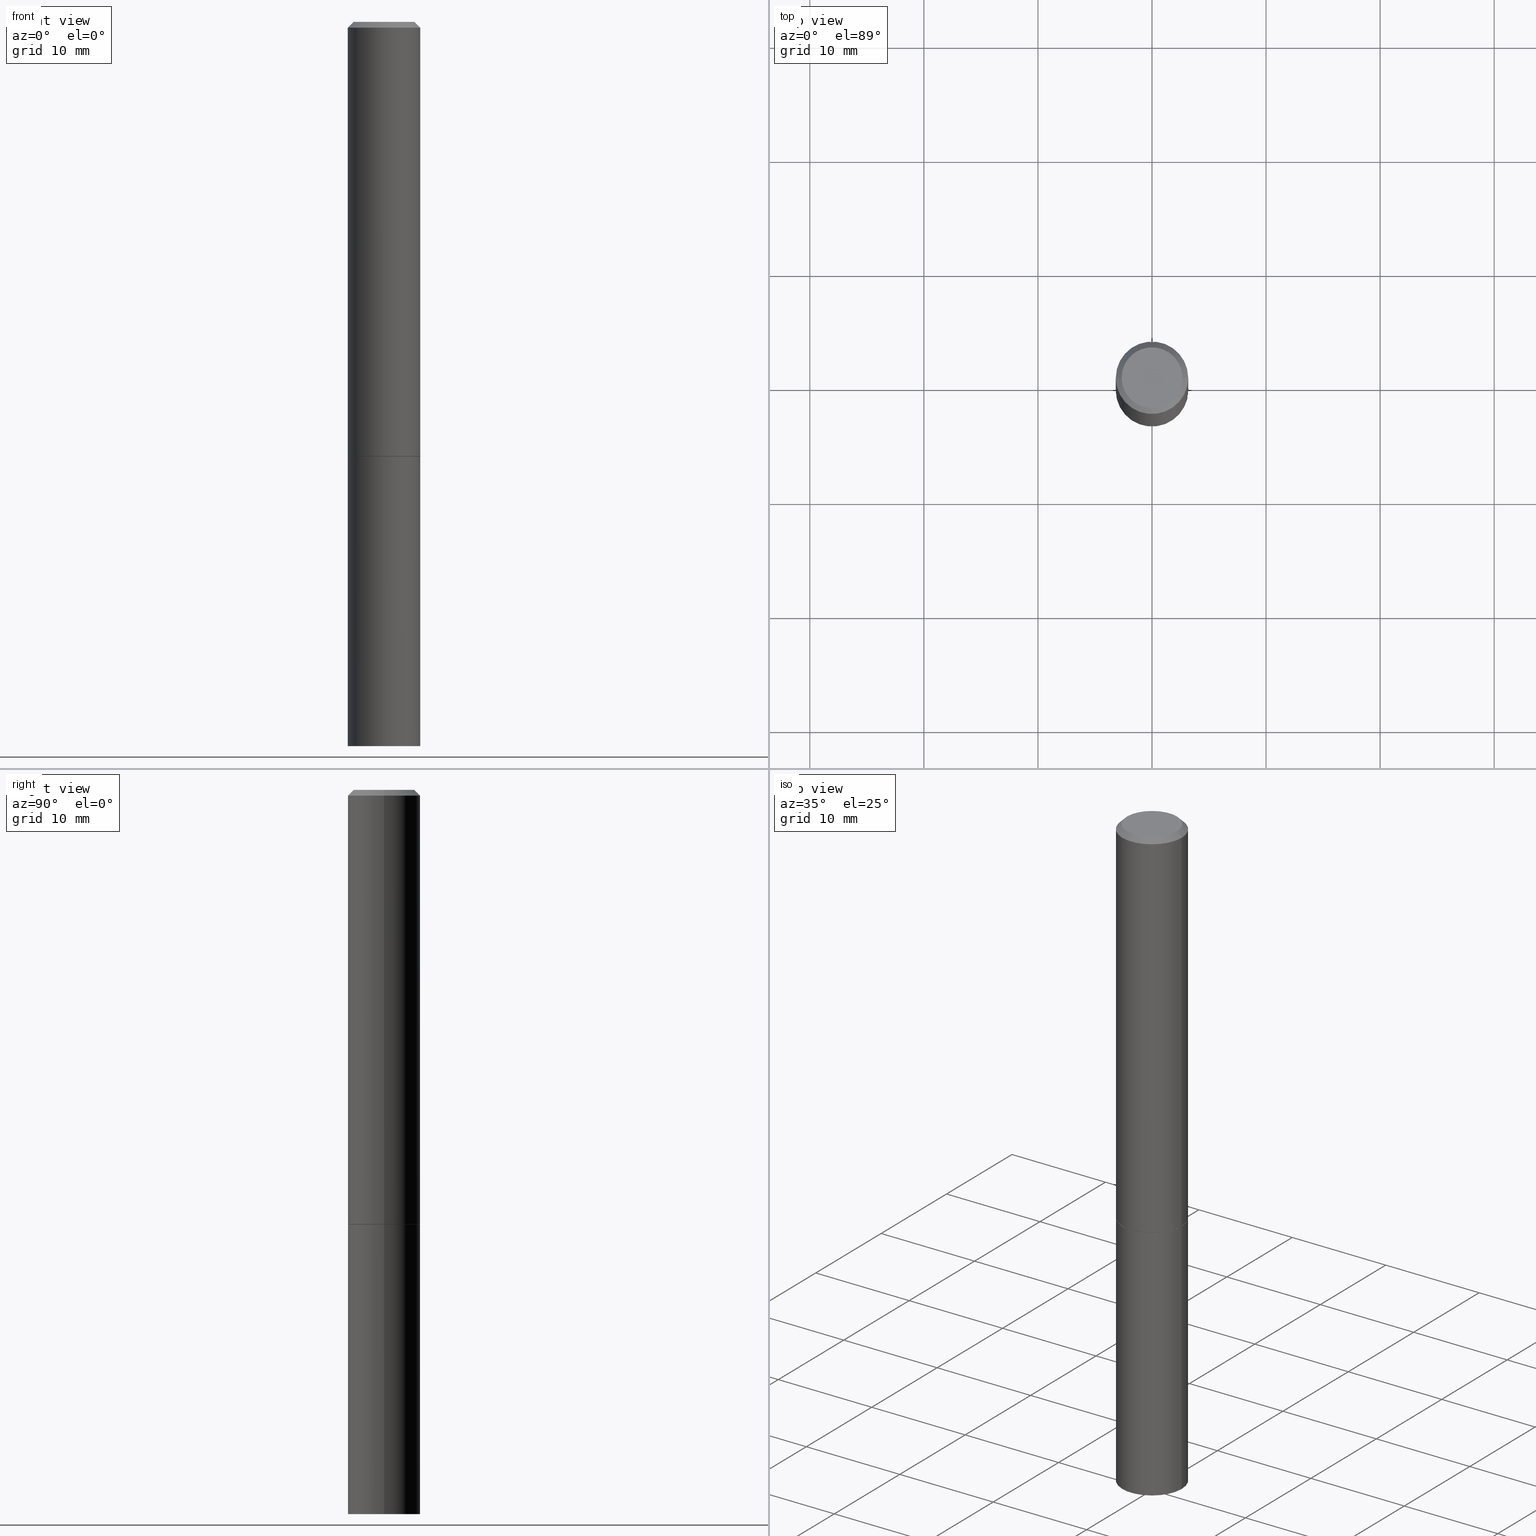
[diagram: canonical four-view strip — front | top / right | iso, engineering-drawing reading convention]
A machine part, canonical four-view strip (front | top / right | iso — engineering-drawing reading convention). The complete STEP part file that produces these views, byte-faithful:
ISO-10303-21;
HEADER;
FILE_DESCRIPTION (( 'STEP AP203' ),
    '1' );
FILE_NAME ('72971.STEP',
    '2024-02-29T05:51:46',
    ( '' ),
    ( '' ),
    'SwSTEP 2.0',
    'SolidWorks 2023',
    '' );
FILE_SCHEMA (( 'CONFIG_CONTROL_DESIGN' ));
ENDSEC;

DATA;
#1 =( NAMED_UNIT ( * ) SI_UNIT ( $, .STERADIAN. ) SOLID_ANGLE_UNIT ( ) );
#2 = VECTOR ( 'NONE', #195, 39.37007874015748854 ) ;
#3 = APPROVAL ( #232, 'UNSPECIFIED' ) ;
#4 =( LENGTH_UNIT ( ) NAMED_UNIT ( * ) SI_UNIT ( $, .METRE. ) );
#5 = LENGTH_MEASURE_WITH_UNIT ( LENGTH_MEASURE( 0.02539999999999999897 ), #4 );
#6 = ORIENTED_EDGE ( 'NONE', *, *, #209, .F. ) ;
#7 = CONICAL_SURFACE ( 'NONE', #81, 0.1239999999999999991, 0.7853981633974141952 ) ;
#8 = LOCAL_TIME ( 0, 51, 46.00000000000000000, #360 ) ;
#9 = DATE_AND_TIME ( #238, #336 ) ;
#10 = ORIENTED_EDGE ( 'NONE', *, *, #73, .T. ) ;
#11 = CC_DESIGN_PERSON_AND_ORGANIZATION_ASSIGNMENT ( #170, #313, ( #153 ) ) ;
#12 = DIRECTION ( 'NONE',  ( 1.000000000000000000, -6.982962677686270655E-15, 0.000000000000000000 ) ) ;
#13 = ORIENTED_EDGE ( 'NONE', *, *, #134, .F. ) ;
#14 = CONICAL_SURFACE ( 'NONE', #42, 0.1249999999999998057, 0.7853981633974469467 ) ;
#15 = CARTESIAN_POINT ( 'NONE',  ( 8.728703347108443769E-16, 0.1249999999999912709, -2.500000000000000444 ) ) ;
#16 = VERTEX_POINT ( 'NONE', #129 ) ;
#17 = COORDINATED_UNIVERSAL_TIME_OFFSET ( 5, 0, .BEHIND. ) ;
#18 = ORIENTED_EDGE ( 'NONE', *, *, #357, .F. ) ;
#19 = COORDINATED_UNIVERSAL_TIME_OFFSET ( 5, 0, .BEHIND. ) ;
#20 = SECURITY_CLASSIFICATION ( '', '', #250 ) ;
#21 = PLANE ( 'NONE',  #112 ) ;
#22 = COORDINATED_UNIVERSAL_TIME_OFFSET ( 5, 0, .BEHIND. ) ;
#23 = FACE_OUTER_BOUND ( 'NONE', #314, .T. ) ;
#24 = DIRECTION ( 'NONE',  ( -2.445468806185136877E-29, 3.491481338843145188E-15, 1.000000000000000000 ) ) ;
#25 = VECTOR ( 'NONE', #226, 39.37007874015748143 ) ;
#26 = DIRECTION ( 'NONE',  ( -1.000000000000000000, 6.982962677686265922E-15, -4.876176775795935793E-29 ) ) ;
#27 = FACE_OUTER_BOUND ( 'NONE', #96, .T. ) ;
#28 = CARTESIAN_POINT ( 'NONE',  ( 0.1249999999999998057, -9.273918764983031658E-16, -0.02000000000000004552 ) ) ;
#29 = ADVANCED_FACE ( 'NONE', ( #92 ), #94, .F. ) ;
#30 = AXIS2_PLACEMENT_3D ( 'NONE', #143, #202, #288 ) ;
#31 =( NAMED_UNIT ( * ) PLANE_ANGLE_UNIT ( ) SI_UNIT ( $, .RADIAN. ) );
#32 = EDGE_LOOP ( 'NONE', ( #151, #322, #18, #85 ) ) ;
#33 = ORIENTED_EDGE ( 'NONE', *, *, #158, .F. ) ;
#34 = PERSON_AND_ORGANIZATION ( #201, #225 ) ;
#35 = ADVANCED_FACE ( 'NONE', ( #298 ), #214, .T. ) ;
#36 = ORIENTED_EDGE ( 'NONE', *, *, #197, .T. ) ;
#37 = CONICAL_SURFACE ( 'NONE', #77, 0.1249999999999998057, 0.7853981633974469467 ) ;
#38 =( GEOMETRIC_REPRESENTATION_CONTEXT ( 3 ) GLOBAL_UNCERTAINTY_ASSIGNED_CONTEXT ( ( #269 ) ) GLOBAL_UNIT_ASSIGNED_CONTEXT ( ( #117, #31, #1 ) ) REPRESENTATION_CONTEXT ( 'NONE', 'WORKASPACE' ) );
#39 = DIRECTION ( 'NONE',  ( -0.7071067811865232589, 7.493145998870265808E-15, 0.7071067811865715536 ) ) ;
#40 = DIRECTION ( 'NONE',  ( -1.000000000000000000, 6.982962677686265922E-15, -4.876176775795935793E-29 ) ) ;
#41 = ORIENTED_EDGE ( 'NONE', *, *, #61, .T. ) ;
#42 = AXIS2_PLACEMENT_3D ( 'NONE', #175, #115, #235 ) ;
#43 = ORIENTED_EDGE ( 'NONE', *, *, #134, .T. ) ;
#44 = ORIENTED_EDGE ( 'NONE', *, *, #258, .T. ) ;
#45 = PERSON_AND_ORGANIZATION ( #201, #225 ) ;
#46 = DIRECTION ( 'NONE',  ( -2.445468806185136597E-29, 3.491481338843145583E-15, 1.000000000000000000 ) ) ;
#47 = APPROVAL_STATUS ( 'not_yet_approved' ) ;
#48 = AXIS2_PLACEMENT_3D ( 'NONE', #190, #46, #254 ) ;
#49 = DIRECTION ( 'NONE',  ( 1.000000000000000000, -6.982962677686270655E-15, 0.000000000000000000 ) ) ;
#50 = CARTESIAN_POINT ( 'NONE',  ( 3.665757740471519853E-29, -5.233730526925875958E-15, -1.499000000000000110 ) ) ;
#51 = ADVANCED_FACE ( 'NONE', ( #320 ), #63, .T. ) ;
#52 = CARTESIAN_POINT ( 'NONE',  ( 3.668203209277704895E-29, -5.237222008264718177E-15, -1.500000000000000222 ) ) ;
#53 = AXIS2_PLACEMENT_3D ( 'NONE', #15, #67, #40 ) ;
#54 = CARTESIAN_POINT ( 'NONE',  ( 4.890937612370284544E-31, -6.982962677686307633E-17, -0.02000000000000004552 ) ) ;
#55 = FACE_OUTER_BOUND ( 'NONE', #32, .T. ) ;
#56 = ADVANCED_FACE ( 'NONE', ( #182 ), #275, .T. ) ;
#57 = CARTESIAN_POINT ( 'NONE',  ( -0.1250000000000000000, -6.094784257986165933E-15, -2.500000000000000000 ) ) ;
#58 = AXIS2_PLACEMENT_3D ( 'NONE', #301, #65, #128 ) ;
#59 = DIRECTION ( 'NONE',  ( 0.7071067811865465735, -7.319954787623252890E-15, -0.7071067811865484609 ) ) ;
#60 = VERTEX_POINT ( 'NONE', #156 ) ;
#61 = EDGE_CURVE ( 'NONE', #98, #266, #95, .T. ) ;
#62 = APPLICATION_PROTOCOL_DEFINITION ( 'international standard', 'config_control_design', 1994, #252 ) ;
#63 = PLANE ( 'NONE',  #53 ) ;
#64 = EDGE_CURVE ( 'NONE', #291, #126, #295, .T. ) ;
#65 = DIRECTION ( 'NONE',  ( -2.445468806185136597E-29, 3.491481338843145583E-15, 1.000000000000000000 ) ) ;
#66 = ORIENTED_EDGE ( 'NONE', *, *, #271, .T. ) ;
#67 = DIRECTION ( 'NONE',  ( 2.438088387897960049E-29, -3.491481338843145188E-15, -1.000000000000000000 ) ) ;
#68 = AXIS2_PLACEMENT_3D ( 'NONE', #273, #318, #187 ) ;
#69 = AXIS2_PLACEMENT_3D ( 'NONE', #194, #188, #329 ) ;
#70 = APPROVAL_ROLE ( '' ) ;
#71 = ORIENTED_EDGE ( 'NONE', *, *, #61, .F. ) ;
#72 = CALENDAR_DATE ( 2024, 29, 2 ) ;
#73 = EDGE_CURVE ( 'NONE', #338, #118, #319, .T. ) ;
#74 = DIRECTION ( 'NONE',  ( -0.7071067811865465735, 2.468850131082246805E-15, -0.7071067811865484609 ) ) ;
#75 = DIRECTION ( 'NONE',  ( 1.000000000000000000, -6.982962677686266711E-15, 4.876206205277401876E-29 ) ) ;
#76 = DATE_AND_TIME ( #221, #256 ) ;
#77 = AXIS2_PLACEMENT_3D ( 'NONE', #54, #198, #287 ) ;
#78 = DIRECTION ( 'NONE',  ( -2.445468806185136597E-29, 3.491481338843145583E-15, 1.000000000000000000 ) ) ;
#79 = FACE_OUTER_BOUND ( 'NONE', #272, .T. ) ;
#80 = DIRECTION ( 'NONE',  ( 2.438088387897960049E-29, -3.491481338843145188E-15, -1.000000000000000000 ) ) ;
#81 = AXIS2_PLACEMENT_3D ( 'NONE', #251, #106, #224 ) ;
#82 = APPROVAL_PERSON_ORGANIZATION ( #186, #142, #299 ) ;
#83 = PLANE ( 'NONE',  #242 ) ;
#84 = DIRECTION ( 'NONE',  ( -2.445468806185136597E-29, 3.491481338843145583E-15, 1.000000000000000000 ) ) ;
#85 = ORIENTED_EDGE ( 'NONE', *, *, #271, .F. ) ;
#86 = CYLINDRICAL_SURFACE ( 'NONE', #362, 0.1249999999999999029 ) ;
#87 = ORIENTED_EDGE ( 'NONE', *, *, #334, .F. ) ;
#88 = AXIS2_PLACEMENT_3D ( 'NONE', #309, #78, #307 ) ;
#89 = VERTEX_POINT ( 'NONE', #296 ) ;
#90 = VERTEX_POINT ( 'NONE', #149 ) ;
#91 = DATE_AND_TIME ( #72, #8 ) ;
#92 = FACE_OUTER_BOUND ( 'NONE', #239, .T. ) ;
#93 = ADVANCED_FACE ( 'NONE', ( #27 ), #21, .F. ) ;
#94 = PLANE ( 'NONE',  #68 ) ;
#95 = CIRCLE ( 'NONE', #267, 0.1049999999999998296 ) ;
#96 = EDGE_LOOP ( 'NONE', ( #261, #43 ) ) ;
#97 = EDGE_LOOP ( 'NONE', ( #263, #218, #317, #122 ) ) ;
#98 = VERTEX_POINT ( 'NONE', #361 ) ;
#99 = CIRCLE ( 'NONE', #245, 0.1250000000000000000 ) ;
#100 = EDGE_CURVE ( 'NONE', #60, #126, #99, .T. ) ;
#101 = PERSON_AND_ORGANIZATION ( #201, #225 ) ;
#102 = CARTESIAN_POINT ( 'NONE',  ( 0.1049999999999998296, -8.238720831321564811E-16, -1.707404996039620013E-17 ) ) ;
#103 = PERSON_AND_ORGANIZATION_ROLE ( 'creator' ) ;
#104 = DIRECTION ( 'NONE',  ( -2.445468806185136877E-29, 3.491481338843145188E-15, 1.000000000000000000 ) ) ;
#105 = CC_DESIGN_PERSON_AND_ORGANIZATION_ASSIGNMENT ( #193, #355, ( #20 ) ) ;
#106 = DIRECTION ( 'NONE',  ( -2.445468806185136597E-29, 3.491481338843145583E-15, 1.000000000000000000 ) ) ;
#107 = CIRCLE ( 'NONE', #88, 0.1249999999999998057 ) ;
#108 = CARTESIAN_POINT ( 'NONE',  ( 0.1239999999999999991, -6.103109380297816290E-15, -1.500000000000000222 ) ) ;
#109 = CARTESIAN_POINT ( 'NONE',  ( -0.1249999999999998057, 8.030407079339189559E-16, -0.02000000000000004552 ) ) ;
#110 = DIRECTION ( 'NONE',  ( 2.438088387897960049E-29, -3.491481338843145188E-15, -1.000000000000000000 ) ) ;
#111 = PRODUCT_RELATED_PRODUCT_CATEGORY ( 'detail', '', ( #153 ) ) ;
#112 = AXIS2_PLACEMENT_3D ( 'NONE', #164, #80, #26 ) ;
#113 = CARTESIAN_POINT ( 'NONE',  ( 7.332110811570568410E-16, 0.1049999999999998296, -3.751425655587305558E-16 ) ) ;
#114 = ORIENTED_EDGE ( 'NONE', *, *, #100, .F. ) ;
#115 = DIRECTION ( 'NONE',  ( 2.445468806185136597E-29, -3.491481338843145583E-15, -1.000000000000000000 ) ) ;
#116 = ORIENTED_EDGE ( 'NONE', *, *, #237, .F. ) ;
#117 =( CONVERSION_BASED_UNIT ( 'INCH', #5 ) LENGTH_UNIT ( ) NAMED_UNIT ( #150 ) );
#118 = VERTEX_POINT ( 'NONE', #227 ) ;
#119 = AXIS2_PLACEMENT_3D ( 'NONE', #249, #163, #220 ) ;
#120 = DIRECTION ( 'NONE',  ( -2.445468806185136597E-29, 3.491481338843145583E-15, 1.000000000000000000 ) ) ;
#121 = APPROVAL_PERSON_ORGANIZATION ( #141, #3, #268 ) ;
#122 = ORIENTED_EDGE ( 'NONE', *, *, #203, .F. ) ;
#123 = EDGE_LOOP ( 'NONE', ( #124, #344, #145, #116 ) ) ;
#124 = ORIENTED_EDGE ( 'NONE', *, *, #253, .T. ) ;
#125 = AXIS2_PLACEMENT_3D ( 'NONE', #335, #233, #264 ) ;
#126 = VERTEX_POINT ( 'NONE', #308 ) ;
#127 = EDGE_CURVE ( 'NONE', #338, #211, #162, .T. ) ;
#128 = DIRECTION ( 'NONE',  ( 1.000000000000000000, -6.982962677686266711E-15, 4.876176775795935793E-29 ) ) ;
#129 = CARTESIAN_POINT ( 'NONE',  ( 0.1249999999999998057, -9.273918764983031658E-16, -0.02000000000000004552 ) ) ;
#130 = VECTOR ( 'NONE', #24, 39.37007874015748143 ) ;
#131 = CC_DESIGN_APPROVAL ( #142, ( #152 ) ) ;
#132 = CALENDAR_DATE ( 2024, 29, 2 ) ;
#133 = DIRECTION ( 'NONE',  ( 1.000000000000000000, -6.982962677686270655E-15, 0.000000000000000000 ) ) ;
#134 = EDGE_CURVE ( 'NONE', #211, #89, #159, .T. ) ;
#135 = APPROVAL_DATE_TIME ( #219, #142 ) ;
#136 = CARTESIAN_POINT ( 'NONE',  ( 0.1250000000000000000, -8.728703347107833388E-16, 6.095220969744919741E-30 ) ) ;
#137 = CYLINDRICAL_SURFACE ( 'NONE', #119, 0.1250000000000000000 ) ;
#138 = CARTESIAN_POINT ( 'NONE',  ( 3.668203209277704895E-29, -5.237222008264718177E-15, -1.500000000000000222 ) ) ;
#139 = ADVANCED_FACE ( 'NONE', ( #79 ), #137, .T. ) ;
#140 = DIRECTION ( 'NONE',  ( -2.445468806185136597E-29, 3.491481338843145583E-15, 1.000000000000000000 ) ) ;
#141 = PERSON_AND_ORGANIZATION ( #201, #225 ) ;
#142 = APPROVAL ( #47, 'UNSPECIFIED' ) ;
#143 = CARTESIAN_POINT ( 'NONE',  ( 3.668203209277704895E-29, -5.237222008264718177E-15, -1.500000000000000222 ) ) ;
#144 = ORIENTED_EDGE ( 'NONE', *, *, #166, .T. ) ;
#145 = ORIENTED_EDGE ( 'NONE', *, *, #292, .F. ) ;
#146 = AXIS2_PLACEMENT_3D ( 'NONE', #340, #140, #343 ) ;
#147 = VERTEX_POINT ( 'NONE', #108 ) ;
#148 = CARTESIAN_POINT ( 'NONE',  ( 6.113672015462842613E-29, -8.728703347107864943E-15, -2.500000000000000000 ) ) ;
#149 = CARTESIAN_POINT ( 'NONE',  ( -0.1249999999999998057, 8.030407079339189559E-16, -0.02000000000000004552 ) ) ;
#150 = DIMENSIONAL_EXPONENTS ( 1.000000000000000000, 0.000000000000000000, 0.000000000000000000, 0.000000000000000000, 0.000000000000000000, 0.000000000000000000, 0.000000000000000000 ) ;
#151 = ORIENTED_EDGE ( 'NONE', *, *, #100, .T. ) ;
#152 = PRODUCT_DEFINITION_FORMATION_WITH_SPECIFIED_SOURCE ( 'ANY', '', #153, .NOT_KNOWN. ) ;
#153 = PRODUCT ( '72971', '72971', '', ( #337 ) ) ;
#154 = ADVANCED_FACE ( 'NONE', ( #302 ), #294, .T. ) ;
#155 = CARTESIAN_POINT ( 'NONE',  ( 4.175405657340879278E-46, -5.961372681521788801E-32, -1.707404996040164512E-17 ) ) ;
#156 = CARTESIAN_POINT ( 'NONE',  ( 0.1250000000000000000, -6.106600861636658508E-15, -1.499000000000000110 ) ) ;
#157 = LINE ( 'NONE', #279, #191 ) ;
#158 = EDGE_CURVE ( 'NONE', #147, #60, #304, .T. ) ;
#159 = CIRCLE ( 'NONE', #69, 0.1250000000000000000 ) ;
#160 = APPROVAL_DATE_TIME ( #346, #3 ) ;
#161 = PRODUCT_DEFINITION_SHAPE ( 'NONE', 'NONE',  #312 ) ;
#162 = LINE ( 'NONE', #257, #285 ) ;
#163 = DIRECTION ( 'NONE',  ( -2.445468806185136597E-29, 3.491481338843145583E-15, 1.000000000000000000 ) ) ;
#164 = CARTESIAN_POINT ( 'NONE',  ( 8.728703347108198236E-16, 0.1249999999999947542, -1.500000000000000666 ) ) ;
#165 = CIRCLE ( 'NONE', #199, 0.1049999999999998296 ) ;
#166 = EDGE_CURVE ( 'NONE', #266, #98, #165, .T. ) ;
#167 = DIRECTION ( 'NONE',  ( -2.445468806185136597E-29, 3.491481338843145583E-15, 1.000000000000000000 ) ) ;
#168 = FACE_OUTER_BOUND ( 'NONE', #231, .T. ) ;
#169 = ORIENTED_EDGE ( 'NONE', *, *, #64, .F. ) ;
#170 = PERSON_AND_ORGANIZATION ( #201, #225 ) ;
#171 = ORIENTED_EDGE ( 'NONE', *, *, #258, .F. ) ;
#172 = CC_DESIGN_PERSON_AND_ORGANIZATION_ASSIGNMENT ( #45, #358, ( #152 ) ) ;
#173 = AXIS2_PLACEMENT_3D ( 'NONE', #138, #363, #49 ) ;
#174 = DIRECTION ( 'NONE',  ( 1.000000000000000000, -6.982962677686267499E-15, 0.000000000000000000 ) ) ;
#175 = CARTESIAN_POINT ( 'NONE',  ( 4.890937612370284544E-31, -6.982962677686307633E-17, -0.02000000000000004552 ) ) ;
#176 = CARTESIAN_POINT ( 'NONE',  ( 0.000000000000000000, 0.000000000000000000, 0.000000000000000000 ) ) ;
#177 = DESIGN_CONTEXT ( 'detailed design', #196, 'design' ) ;
#178 = AXIS2_PLACEMENT_3D ( 'NONE', #350, #352, #184 ) ;
#179 = DATE_TIME_ROLE ( 'classification_date' ) ;
#180 = APPROVAL ( #276, 'UNSPECIFIED' ) ;
#181 = DIRECTION ( 'NONE',  ( 1.000000000000000000, -6.982962677686266711E-15, 4.876206205277401876E-29 ) ) ;
#182 = FACE_OUTER_BOUND ( 'NONE', #123, .T. ) ;
#183 = ORIENTED_EDGE ( 'NONE', *, *, #197, .F. ) ;
#184 = DIRECTION ( 'NONE',  ( 1.000000000000000000, -6.982962677686266711E-15, 4.876176775795935793E-29 ) ) ;
#185 = CLOSED_SHELL ( 'NONE', ( #56, #51, #93, #139 ) ) ;
#186 = PERSON_AND_ORGANIZATION ( #201, #225 ) ;
#187 = DIRECTION ( 'NONE',  ( 1.000000000000000000, -6.982962677686265922E-15, 4.876176775795935793E-29 ) ) ;
#188 = DIRECTION ( 'NONE',  ( -2.445468806185136597E-29, 3.491481338843145583E-15, 1.000000000000000000 ) ) ;
#189 = PERSON_AND_ORGANIZATION_ROLE ( 'creator' ) ;
#190 = CARTESIAN_POINT ( 'NONE',  ( 6.113672015462842613E-29, -8.728703347107864943E-15, -2.500000000000000000 ) ) ;
#191 = VECTOR ( 'NONE', #281, 39.37007874015748143 ) ;
#192 = CC_DESIGN_APPROVAL ( #3, ( #312 ) ) ;
#193 = PERSON_AND_ORGANIZATION ( #201, #225 ) ;
#194 = CARTESIAN_POINT ( 'NONE',  ( 3.668203209277704895E-29, -5.237222008264718177E-15, -1.500000000000000222 ) ) ;
#195 = DIRECTION ( 'NONE',  ( 0.7071067811865232589, -2.468850131082003836E-15, 0.7071067811865715536 ) ) ;
#196 = APPLICATION_CONTEXT ( 'configuration controlled 3d designs of mechanical parts and assemblies' ) ;
#197 = EDGE_CURVE ( 'NONE', #90, #16, #107, .T. ) ;
#198 = DIRECTION ( 'NONE',  ( 2.445468806185136597E-29, -3.491481338843145583E-15, -1.000000000000000000 ) ) ;
#199 = AXIS2_PLACEMENT_3D ( 'NONE', #246, #333, #75 ) ;
#200 = DIRECTION ( 'NONE',  ( -1.000000000000000000, 6.982962677686265922E-15, -4.876176775795935793E-29 ) ) ;
#201 = PERSON ( 'UNSPECIFIED', 'UNSPECIFIED', 'UNSPECIFIED', ('UNSPECIFIED'), ('UNSPECIFIED'), ('UNSPECIFIED') ) ;
#202 = DIRECTION ( 'NONE',  ( -2.445468806185136597E-29, 3.491481338843145583E-15, 1.000000000000000000 ) ) ;
#203 = EDGE_CURVE ( 'NONE', #98, #90, #283, .T. ) ;
#204 = DIRECTION ( 'NONE',  ( 1.000000000000000000, -6.982962677686266711E-15, 4.876176775795935793E-29 ) ) ;
#205 = ORIENTED_EDGE ( 'NONE', *, *, #334, .T. ) ;
#206 = CIRCLE ( 'NONE', #125, 0.1239999999999999991 ) ;
#207 = LINE ( 'NONE', #28, #290 ) ;
#208 = EDGE_LOOP ( 'NONE', ( #240, #71, #297, #36 ) ) ;
#209 = EDGE_CURVE ( 'NONE', #126, #90, #331, .T. ) ;
#210 = APPROVAL_DATE_TIME ( #9, #180 ) ;
#211 = VERTEX_POINT ( 'NONE', #284 ) ;
#212 = CIRCLE ( 'NONE', #48, 0.1250000000000000000 ) ;
#213 = LOCAL_TIME ( 0, 51, 46.00000000000000000, #19 ) ;
#214 = CYLINDRICAL_SURFACE ( 'NONE', #58, 0.1249999999999999029 ) ;
#215 = DIRECTION ( 'NONE',  ( -2.445468806185136597E-29, 3.491481338843145583E-15, 1.000000000000000000 ) ) ;
#216 = ORIENTED_EDGE ( 'NONE', *, *, #64, .T. ) ;
#217 = AXIS2_PLACEMENT_3D ( 'NONE', #316, #120, #174 ) ;
#218 = ORIENTED_EDGE ( 'NONE', *, *, #323, .T. ) ;
#219 = DATE_AND_TIME ( #274, #311 ) ;
#220 = DIRECTION ( 'NONE',  ( 1.000000000000000000, -6.982962677686266711E-15, 4.876176775795935793E-29 ) ) ;
#221 = CALENDAR_DATE ( 2024, 29, 2 ) ;
#222 = DIRECTION ( 'NONE',  ( -2.445468806185136597E-29, 3.491481338843145583E-15, 1.000000000000000000 ) ) ;
#223 = MANIFOLD_SOLID_BREP ( 'Body-Move/Copy2[1]', #185 ) ;
#224 = DIRECTION ( 'NONE',  ( 1.000000000000000000, -6.982962677686270655E-15, 0.000000000000000000 ) ) ;
#225 = ORGANIZATION ( 'UNSPECIFIED', 'UNSPECIFIED', '' ) ;
#226 = DIRECTION ( 'NONE',  ( -2.445468806185136877E-29, 3.491481338843145188E-15, 1.000000000000000000 ) ) ;
#227 = CARTESIAN_POINT ( 'NONE',  ( 0.1250000000000000000, -9.601573681818648281E-15, -2.500000000000000000 ) ) ;
#228 = VECTOR ( 'NONE', #39, 39.37007874015748854 ) ;
#229 = CC_DESIGN_SECURITY_CLASSIFICATION ( #20, ( #152 ) ) ;
#230 = FACE_OUTER_BOUND ( 'NONE', #97, .T. ) ;
#231 = EDGE_LOOP ( 'NONE', ( #41, #144 ) ) ;
#232 = APPROVAL_STATUS ( 'not_yet_approved' ) ;
#233 = DIRECTION ( 'NONE',  ( -2.445468806185136597E-29, 3.491481338843145583E-15, 1.000000000000000000 ) ) ;
#234 = VECTOR ( 'NONE', #74, 39.37007874015748143 ) ;
#235 = DIRECTION ( 'NONE',  ( -1.000000000000000000, 6.982962677686267499E-15, 0.000000000000000000 ) ) ;
#236 = ORIENTED_EDGE ( 'NONE', *, *, #365, .F. ) ;
#237 = EDGE_CURVE ( 'NONE', #118, #89, #364, .T. ) ;
#238 = CALENDAR_DATE ( 2024, 29, 2 ) ;
#239 = EDGE_LOOP ( 'NONE', ( #171, #87 ) ) ;
#240 = ORIENTED_EDGE ( 'NONE', *, *, #323, .F. ) ;
#241 = CC_DESIGN_DATE_AND_TIME_ASSIGNMENT ( #76, #303, ( #312 ) ) ;
#242 = AXIS2_PLACEMENT_3D ( 'NONE', #113, #110, #200 ) ;
#243 = ORIENTED_EDGE ( 'NONE', *, *, #253, .F. ) ;
#244 = ORIENTED_EDGE ( 'NONE', *, *, #365, .T. ) ;
#245 = AXIS2_PLACEMENT_3D ( 'NONE', #50, #222, #327 ) ;
#246 = CARTESIAN_POINT ( 'NONE',  ( 4.175405657340879278E-46, -5.961372681521788801E-32, -1.707404996040164512E-17 ) ) ;
#247 = APPROVAL_PERSON_ORGANIZATION ( #101, #180, #70 ) ;
#248 = CC_DESIGN_DATE_AND_TIME_ASSIGNMENT ( #91, #179, ( #20 ) ) ;
#249 = CARTESIAN_POINT ( 'NONE',  ( 0.000000000000000000, 0.000000000000000000, 0.000000000000000000 ) ) ;
#250 = SECURITY_CLASSIFICATION_LEVEL ( 'unclassified' ) ;
#251 = CARTESIAN_POINT ( 'NONE',  ( 3.668203209277704895E-29, -5.237222008264718177E-15, -1.500000000000000222 ) ) ;
#252 = APPLICATION_CONTEXT ( 'configuration controlled 3d designs of mechanical parts and assemblies' ) ;
#253 = EDGE_CURVE ( 'NONE', #118, #338, #212, .T. ) ;
#254 = DIRECTION ( 'NONE',  ( 1.000000000000000000, -6.982962677686270655E-15, 0.000000000000000000 ) ) ;
#255 = CIRCLE ( 'NONE', #30, 0.1250000000000000000 ) ;
#256 = LOCAL_TIME ( 0, 51, 46.00000000000000000, #22 ) ;
#257 = CARTESIAN_POINT ( 'NONE',  ( -0.1250000000000000000, 8.881784197001252323E-16, -6.148668862818632227E-30 ) ) ;
#258 = EDGE_CURVE ( 'NONE', #147, #291, #260, .T. ) ;
#259 = ORIENTED_EDGE ( 'NONE', *, *, #73, .F. ) ;
#260 = CIRCLE ( 'NONE', #173, 0.1239999999999999991 ) ;
#261 = ORIENTED_EDGE ( 'NONE', *, *, #292, .T. ) ;
#262 = CARTESIAN_POINT ( 'NONE',  ( 0.000000000000000000, 0.000000000000000000, 0.000000000000000000 ) ) ;
#263 = ORIENTED_EDGE ( 'NONE', *, *, #166, .F. ) ;
#264 = DIRECTION ( 'NONE',  ( 1.000000000000000000, -6.982962677686270655E-15, 0.000000000000000000 ) ) ;
#265 = ADVANCED_FACE ( 'NONE', ( #356 ), #37, .T. ) ;
#266 = VERTEX_POINT ( 'NONE', #102 ) ;
#267 = AXIS2_PLACEMENT_3D ( 'NONE', #155, #347, #181 ) ;
#268 = APPROVAL_ROLE ( '' ) ;
#269 = UNCERTAINTY_MEASURE_WITH_UNIT (LENGTH_MEASURE( 1.000000000000000082E-05 ), #117, 'distance_accuracy_value', 'NONE');
#270 = EDGE_LOOP ( 'NONE', ( #44, #216, #114, #33 ) ) ;
#271 = EDGE_CURVE ( 'NONE', #60, #16, #157, .T. ) ;
#272 = EDGE_LOOP ( 'NONE', ( #278, #10, #348, #13 ) ) ;
#273 = CARTESIAN_POINT ( 'NONE',  ( 3.668203209277704895E-29, -5.237222008264718177E-15, -1.500000000000000222 ) ) ;
#274 = CALENDAR_DATE ( 2024, 29, 2 ) ;
#275 = CYLINDRICAL_SURFACE ( 'NONE', #178, 0.1250000000000000000 ) ;
#276 = APPROVAL_STATUS ( 'not_yet_approved' ) ;
#277 = ADVANCED_FACE ( 'NONE', ( #23 ), #7, .T. ) ;
#278 = ORIENTED_EDGE ( 'NONE', *, *, #127, .F. ) ;
#279 = CARTESIAN_POINT ( 'NONE',  ( 0.1249999999999999029, -8.728703347107826486E-16, 6.095220969744914837E-30 ) ) ;
#280 = PERSON_AND_ORGANIZATION ( #201, #225 ) ;
#281 = DIRECTION ( 'NONE',  ( -2.445468806185136877E-29, 3.491481338843145188E-15, 1.000000000000000000 ) ) ;
#282 = CC_DESIGN_PERSON_AND_ORGANIZATION_ASSIGNMENT ( #34, #103, ( #152 ) ) ;
#283 = LINE ( 'NONE', #109, #234 ) ;
#284 = CARTESIAN_POINT ( 'NONE',  ( -0.1250000000000000000, -6.094784257986165933E-15, -1.500000000000000222 ) ) ;
#285 = VECTOR ( 'NONE', #104, 39.37007874015748143 ) ;
#286 = CIRCLE ( 'NONE', #146, 0.1250000000000000000 ) ;
#287 = DIRECTION ( 'NONE',  ( -1.000000000000000000, 6.982962677686267499E-15, 0.000000000000000000 ) ) ;
#288 = DIRECTION ( 'NONE',  ( 1.000000000000000000, -6.982962677686262766E-15, 0.000000000000000000 ) ) ;
#289 = APPLICATION_PROTOCOL_DEFINITION ( 'international standard', 'config_control_design', 1994, #196 ) ;
#290 = VECTOR ( 'NONE', #59, 39.37007874015748143 ) ;
#291 = VERTEX_POINT ( 'NONE', #315 ) ;
#292 = EDGE_CURVE ( 'NONE', #89, #211, #255, .T. ) ;
#293 = DIRECTION ( 'NONE',  ( 1.000000000000000000, 0.000000000000000000, 0.000000000000000000 ) ) ;
#294 = CONICAL_SURFACE ( 'NONE', #325, 0.1239999999999999991, 0.7853981633974141952 ) ;
#295 = LINE ( 'NONE', #354, #228 ) ;
#296 = CARTESIAN_POINT ( 'NONE',  ( 0.1250000000000000000, -6.110092342975501516E-15, -1.500000000000000222 ) ) ;
#297 = ORIENTED_EDGE ( 'NONE', *, *, #203, .T. ) ;
#298 = FACE_OUTER_BOUND ( 'NONE', #326, .T. ) ;
#299 = APPROVAL_ROLE ( '' ) ;
#300 = ADVANCED_FACE ( 'NONE', ( #55 ), #86, .T. ) ;
#301 = CARTESIAN_POINT ( 'NONE',  ( 0.000000000000000000, 0.000000000000000000, 0.000000000000000000 ) ) ;
#302 = FACE_OUTER_BOUND ( 'NONE', #270, .T. ) ;
#303 = DATE_TIME_ROLE ( 'creation_date' ) ;
#304 = LINE ( 'NONE', #359, #2 ) ;
#305 = CC_DESIGN_APPROVAL ( #180, ( #20 ) ) ;
#306 = ADVANCED_FACE ( 'NONE', ( #168 ), #83, .F. ) ;
#307 = DIRECTION ( 'NONE',  ( 1.000000000000000000, -6.982962677686267499E-15, 0.000000000000000000 ) ) ;
#308 = CARTESIAN_POINT ( 'NONE',  ( -0.1250000000000000278, -1.763601657151242227E-15, -1.499000000000000110 ) ) ;
#309 = CARTESIAN_POINT ( 'NONE',  ( 4.890937612370284544E-31, -6.982962677686307633E-17, -0.02000000000000004552 ) ) ;
#310 = CLOSED_SHELL ( 'NONE', ( #154, #300, #351, #265, #35, #277, #29, #306 ) ) ;
#311 = LOCAL_TIME ( 0, 51, 46.00000000000000000, #17 ) ;
#312 = PRODUCT_DEFINITION ( 'UNKNOWN', '', #152, #177 ) ;
#313 = PERSON_AND_ORGANIZATION_ROLE ( 'design_owner' ) ;
#314 = EDGE_LOOP ( 'NONE', ( #169, #205, #341, #236 ) ) ;
#315 = CARTESIAN_POINT ( 'NONE',  ( -0.1239999999999999991, -4.350850561573972339E-15, -1.500000000000000222 ) ) ;
#316 = CARTESIAN_POINT ( 'NONE',  ( 4.890937612370284544E-31, -6.982962677686307633E-17, -0.02000000000000004552 ) ) ;
#317 = ORIENTED_EDGE ( 'NONE', *, *, #357, .T. ) ;
#318 = DIRECTION ( 'NONE',  ( -2.438088387897960049E-29, 3.491481338843145188E-15, 1.000000000000000000 ) ) ;
#319 = CIRCLE ( 'NONE', #342, 0.1250000000000000000 ) ;
#320 = FACE_OUTER_BOUND ( 'NONE', #321, .T. ) ;
#321 = EDGE_LOOP ( 'NONE', ( #243, #259 ) ) ;
#322 = ORIENTED_EDGE ( 'NONE', *, *, #209, .T. ) ;
#323 = EDGE_CURVE ( 'NONE', #266, #16, #207, .T. ) ;
#324 = ADVANCED_BREP_SHAPE_REPRESENTATION ( '72971', ( #223, #345, #349 ), #38 ) ;
#325 = AXIS2_PLACEMENT_3D ( 'NONE', #52, #167, #133 ) ;
#326 = EDGE_LOOP ( 'NONE', ( #6, #244, #66, #183 ) ) ;
#327 = DIRECTION ( 'NONE',  ( 1.000000000000000000, -6.982962677686262766E-15, 0.000000000000000000 ) ) ;
#328 = SHAPE_DEFINITION_REPRESENTATION ( #161, #324 ) ;
#329 = DIRECTION ( 'NONE',  ( 1.000000000000000000, -6.982962677686262766E-15, 0.000000000000000000 ) ) ;
#330 = CIRCLE ( 'NONE', #217, 0.1249999999999998057 ) ;
#331 = LINE ( 'NONE', #332, #130 ) ;
#332 = CARTESIAN_POINT ( 'NONE',  ( -0.1249999999999999029, 8.881784197001245421E-16, -6.148668862818627323E-30 ) ) ;
#333 = DIRECTION ( 'NONE',  ( -2.445468806185136597E-29, 3.491481338843145583E-15, 1.000000000000000000 ) ) ;
#334 = EDGE_CURVE ( 'NONE', #291, #147, #206, .T. ) ;
#335 = CARTESIAN_POINT ( 'NONE',  ( 3.668203209277704895E-29, -5.237222008264718177E-15, -1.500000000000000222 ) ) ;
#336 = LOCAL_TIME ( 0, 51, 46.00000000000000000, #353 ) ;
#337 = MECHANICAL_CONTEXT ( 'NONE', #252, 'mechanical' ) ;
#338 = VERTEX_POINT ( 'NONE', #57 ) ;
#339 = CC_DESIGN_PERSON_AND_ORGANIZATION_ASSIGNMENT ( #280, #189, ( #312 ) ) ;
#340 = CARTESIAN_POINT ( 'NONE',  ( 3.665757740471519853E-29, -5.233730526925875958E-15, -1.499000000000000110 ) ) ;
#341 = ORIENTED_EDGE ( 'NONE', *, *, #158, .T. ) ;
#342 = AXIS2_PLACEMENT_3D ( 'NONE', #148, #215, #12 ) ;
#343 = DIRECTION ( 'NONE',  ( 1.000000000000000000, -6.982962677686262766E-15, 0.000000000000000000 ) ) ;
#344 = ORIENTED_EDGE ( 'NONE', *, *, #127, .T. ) ;
#345 = MANIFOLD_SOLID_BREP ( 'Body-Move/Copy2[2]', #310 ) ;
#346 = DATE_AND_TIME ( #132, #213 ) ;
#347 = DIRECTION ( 'NONE',  ( -2.445468806185136597E-29, 3.491481338843145583E-15, 1.000000000000000000 ) ) ;
#348 = ORIENTED_EDGE ( 'NONE', *, *, #237, .T. ) ;
#349 = AXIS2_PLACEMENT_3D ( 'NONE', #176, #366, #293 ) ;
#350 = CARTESIAN_POINT ( 'NONE',  ( 0.000000000000000000, 0.000000000000000000, 0.000000000000000000 ) ) ;
#351 = ADVANCED_FACE ( 'NONE', ( #230 ), #14, .T. ) ;
#352 = DIRECTION ( 'NONE',  ( -2.445468806185136597E-29, 3.491481338843145583E-15, 1.000000000000000000 ) ) ;
#353 = COORDINATED_UNIVERSAL_TIME_OFFSET ( 5, 0, .BEHIND. ) ;
#354 = CARTESIAN_POINT ( 'NONE',  ( -0.1239999999999999991, -4.356149015922194741E-15, -1.500000000000000222 ) ) ;
#355 = PERSON_AND_ORGANIZATION_ROLE ( 'classification_officer' ) ;
#356 = FACE_OUTER_BOUND ( 'NONE', #208, .T. ) ;
#357 = EDGE_CURVE ( 'NONE', #16, #90, #330, .T. ) ;
#358 = PERSON_AND_ORGANIZATION_ROLE ( 'design_supplier' ) ;
#359 = CARTESIAN_POINT ( 'NONE',  ( 0.1239999999999999991, -6.103109380297816290E-15, -1.500000000000000222 ) ) ;
#360 = COORDINATED_UNIVERSAL_TIME_OFFSET ( 5, 0, .BEHIND. ) ;
#361 = CARTESIAN_POINT ( 'NONE',  ( -0.1049999999999998296, 7.681258945454878985E-16, -1.707404996040689597E-17 ) ) ;
#362 = AXIS2_PLACEMENT_3D ( 'NONE', #262, #84, #204 ) ;
#363 = DIRECTION ( 'NONE',  ( -2.445468806185136597E-29, 3.491481338843145583E-15, 1.000000000000000000 ) ) ;
#364 = LINE ( 'NONE', #136, #25 ) ;
#365 = EDGE_CURVE ( 'NONE', #126, #60, #286, .T. ) ;
#366 = DIRECTION ( 'NONE',  ( 0.000000000000000000, 0.000000000000000000, 1.000000000000000000 ) ) ;
ENDSEC;
END-ISO-10303-21;
